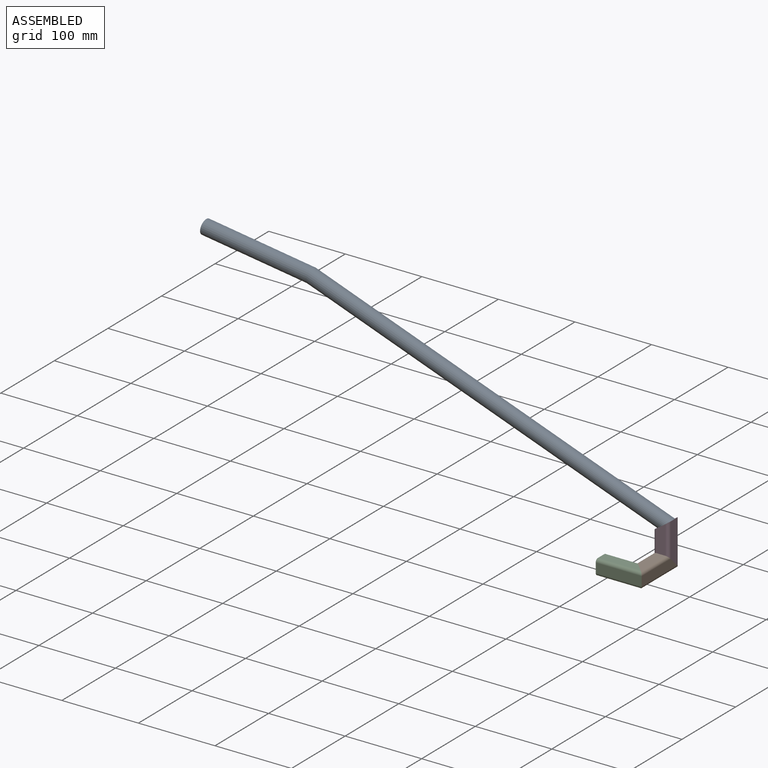
[diagram: assembled view]
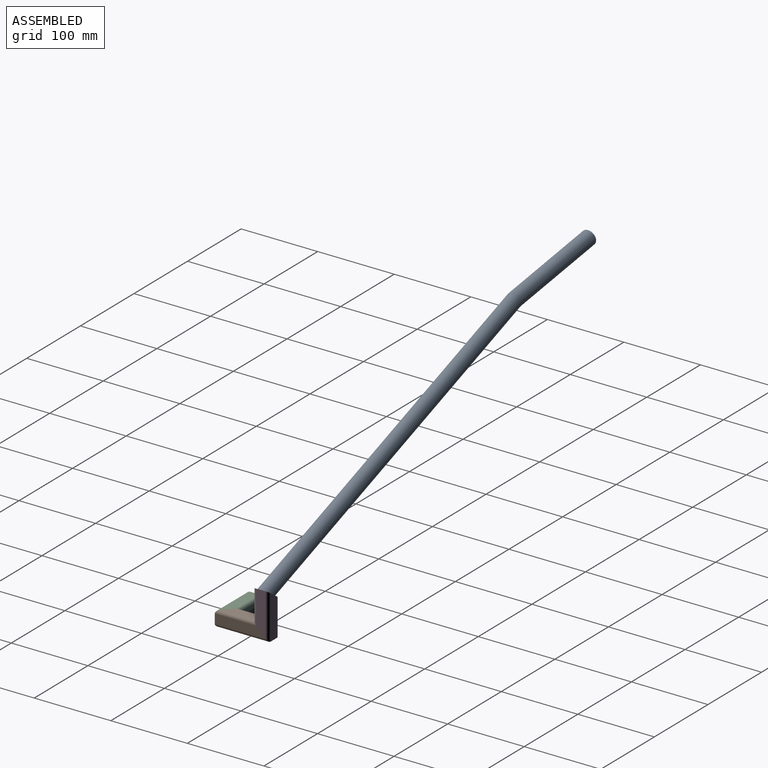
[diagram: assembled view, second angle]
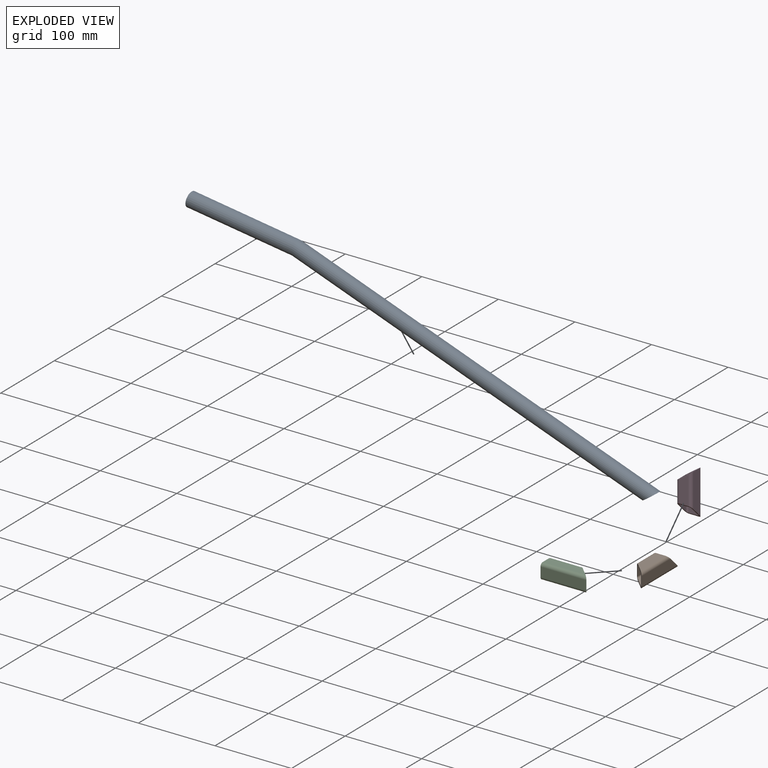
[diagram: exploded view]
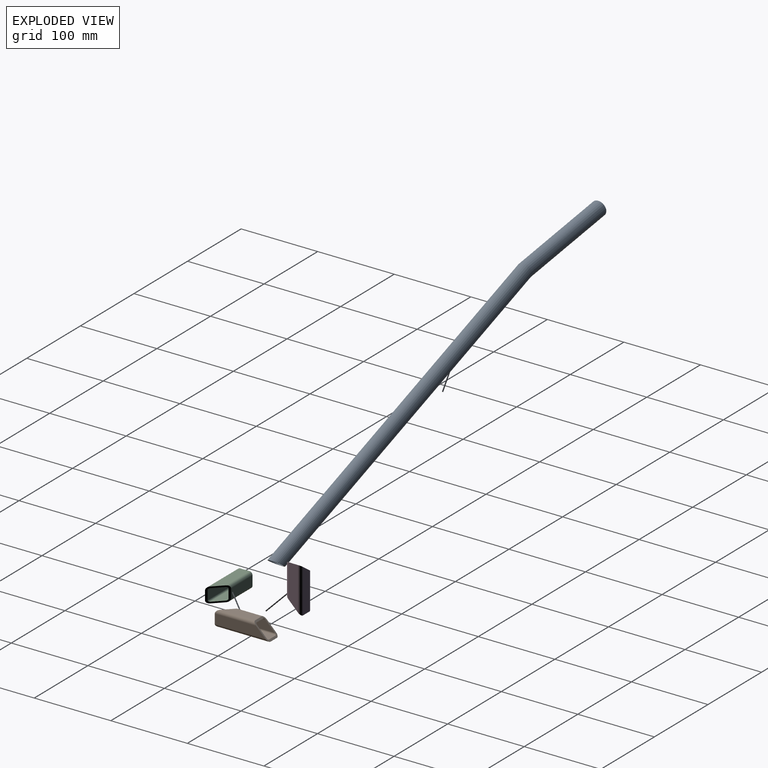
[diagram: exploded view, second angle]
ASSEMBLY  parts=4 mates=3
PART A: 6 faces, bbox 639.1x46.9x19 mm
  f0: cylinder r=7.9mm len=499.68mm, axis (-1,0,0), area 24487mm2, adj f2,f5
  f1: cylinder r=9.5mm len=500.97mm, axis (-1,0,0), area 29446.1mm2, adj f4,f5
  f2: cylinder r=7.9mm len=141.11mm, axis (-0.98,0.2,0), area 6947.8mm2, adj f0,f3
  f3: plane 19x18.61mm, normal (0.98,-0.2,0), area 87.5mm2, adj f2,f4
  f4: cylinder r=9.5mm len=141.91mm, axis (-0.98,0.2,0), area 8354.7mm2, adj f1,f3
  f5: plane 19x19mm, normal (-0.82,-0.57,0), area 106.8mm2, adj f0,f1
PART B: 18 faces, bbox 70x20x20 mm
  f0: plane 66x12mm, normal (0,-1,0), area 720mm2, adj f9,f12,f16,f17
  f1: plane 64x12mm, normal (0,0,-1), area 696mm2, adj f2,f8,f16,f17
  f2: cylinder r=2mm len=52mm, axis (1,0,0), area 157.1mm2, adj f1,f3,f16,f17
  f3: plane 48x12mm, normal (0,-1,0), area 504mm2, adj f2,f4,f16,f17
  f4: cylinder r=2mm len=38mm, axis (1,0,0), area 111.4mm2, adj f3,f5,f16,f17
  f5: plane 48x12mm, normal (0,0,1), area 504mm2, adj f4,f6,f16,f17
  f6: cylinder r=2mm len=52mm, axis (1,0,0), area 157.1mm2, adj f5,f7,f16,f17
  f7: plane 64x12mm, normal (0,1,0), area 696mm2, adj f6,f8,f16,f17
  f8: cylinder r=2mm len=66mm, axis (1,0,0), area 202.8mm2, adj f1,f7,f16,f17
  f9: cylinder r=4mm len=54mm, axis (1,0,0), area 314.1mm2, adj f0,f15,f16,f17
  f10: cylinder r=4mm len=38mm, axis (1,0,0), area 206.7mm2, adj f13,f15,f16,f17
  f11: cylinder r=4mm len=54mm, axis (1,0,0), area 314.1mm2, adj f13,f14,f16,f17
  f12: cylinder r=4mm len=70mm, axis (1,0,0), area 421.5mm2, adj f0,f14,f16,f17
  f13: plane 46x12mm, normal (0,1,0), area 480mm2, adj f10,f11,f16,f17
  f14: plane 66x12mm, normal (0,0,1), area 720mm2, adj f11,f12,f16,f17
  f15: plane 46x12mm, normal (0,0,-1), area 480mm2, adj f9,f10,f16,f17
  f16: plane 20x20mm, normal (0.71,0.71,0), area 189.1mm2, adj f0,f1,f2,f3,f4,f5,f6,f7
  f17: plane 20x20mm, normal (-0.71,0,-0.71), area 189.1mm2, adj f0,f1,f2,f3,f4,f5,f6,f7
PART C: 18 faces, bbox 60x20x20 mm
  f0: plane 56x12mm, normal (0,0,1), area 600mm2, adj f12,f13,f14,f17
  f1: plane 56x12mm, normal (0,0,-1), area 600mm2, adj f2,f8,f14,f17
  f2: cylinder r=2mm len=44mm, axis (1,0,0), area 134.2mm2, adj f1,f3,f14,f17
  f3: plane 42x12mm, normal (0,-1,0), area 504mm2, adj f2,f4,f14,f17
  f4: cylinder r=2mm len=44mm, axis (1,0,0), area 134.2mm2, adj f3,f5,f14,f17
  f5: plane 56x12mm, normal (0,0,1), area 600mm2, adj f4,f6,f14,f17
  f6: cylinder r=2mm len=58mm, axis (1,0,0), area 179.9mm2, adj f5,f7,f14,f17
  f7: plane 58x12mm, normal (0,1,0), area 696mm2, adj f6,f8,f14,f17
  f8: cylinder r=2mm len=58mm, axis (1,0,0), area 179.9mm2, adj f1,f7,f14,f17
  f9: cylinder r=4mm len=60mm, axis (1,0,0), area 367.8mm2, adj f10,f14,f15,f17
  f10: plane 56x12mm, normal (0,0,-1), area 600mm2, adj f9,f11,f14,f17
  f11: cylinder r=4mm len=44mm, axis (1,0,0), area 260.4mm2, adj f10,f14,f16,f17
  f12: cylinder r=4mm len=44mm, axis (1,0,0), area 260.4mm2, adj f0,f14,f16,f17
  f13: cylinder r=4mm len=60mm, axis (1,0,0), area 367.8mm2, adj f0,f14,f15,f17
  f14: plane 20x20mm, normal (-1,0,0), area 133.7mm2, adj f0,f1,f2,f3,f4,f5,f6,f7
  f15: plane 60x12mm, normal (0,-1,0), area 720mm2, adj f9,f13,f14,f17
  f16: plane 40x12mm, normal (0,1,0), area 480mm2, adj f11,f12,f14,f17
  f17: plane 20x20mm, normal (0.71,0.71,0), area 189.1mm2, adj f0,f1,f2,f3,f4,f5,f6,f7
PART D: 18 faces, bbox 60x20x20 mm
  f0: plane 37.2x12mm, normal (0,1,0), area 396mm2, adj f10,f11,f16,f17
  f1: plane 43.4x12mm, normal (0,0,-1), area 448.8mm2, adj f2,f8,f16,f17
  f2: cylinder r=2mm len=32.8mm, axis (1,0,0), area 96.2mm2, adj f1,f3,f16,f17
  f3: plane 39.2x12mm, normal (0,-1,0), area 420mm2, adj f2,f4,f16,f17
  f4: cylinder r=2mm len=42.6mm, axis (1,0,0), area 128.2mm2, adj f3,f5,f16,f17
  f5: plane 54.6x12mm, normal (0,0,1), area 583.2mm2, adj f4,f6,f16,f17
  f6: cylinder r=2mm len=56.6mm, axis (1,0,0), area 173.9mm2, adj f5,f7,f16,f17
  f7: plane 55.2x12mm, normal (0,1,0), area 612mm2, adj f6,f8,f16,f17
  f8: cylinder r=2mm len=46.8mm, axis (1,0,0), area 141.9mm2, adj f1,f7,f16,f17
  f9: cylinder r=4mm len=60mm, axis (1,0,0), area 361.4mm2, adj f13,f15,f16,f17
  f10: cylinder r=4mm len=44mm, axis (1,0,0), area 254mm2, adj f0,f15,f16,f17
  f11: cylinder r=4mm len=32.8mm, axis (1,0,0), area 178.8mm2, adj f0,f14,f16,f17
  f12: cylinder r=4mm len=48.8mm, axis (1,0,0), area 286.2mm2, adj f13,f14,f16,f17
  f13: plane 57.2x12mm, normal (0,-1,0), area 636mm2, adj f9,f12,f16,f17
  f14: plane 42x12mm, normal (0,0,1), area 432mm2, adj f11,f12,f16,f17
  f15: plane 56x12mm, normal (0,0,-1), area 600mm2, adj f9,f10,f16,f17
  f16: plane 20x20mm, normal (0.71,0.71,0), area 189.1mm2, adj f0,f1,f2,f3,f4,f5,f6,f7
  f17: plane 20x20mm, normal (-0.82,0,0.57), area 163.2mm2, adj f0,f1,f2,f3,f4,f5,f6,f7
PLACE A rot(axis=(-0.12,-0.7,-0.7),165.9deg) t=(-713.75,-72.3,262.24)mm
PLACE B rot(axis=(0.71,-0.71,0),180deg) t=(-250.15,-62.3,50.51)mm
PLACE C t=(-300.15,-122.3,50.51)mm fixed
PLACE D rot(axis=(-0.71,0,0.71),180deg) t=(-250.15,-72.3,100.51)mm
MATE fastened C.f17 <-> B.f16  axis (0.71,0.71,0) through (-250.15,-122.3,50.51)mm
MATE fastened D.f16 <-> B.f17  axis (0,-0.71,-0.71) through (-250.15,-72.3,50.51)mm
MATE fastened A.f5 <-> D.f17  axis (0.57,0,-0.82) through (-250.15,-72.3,93.51)mm
